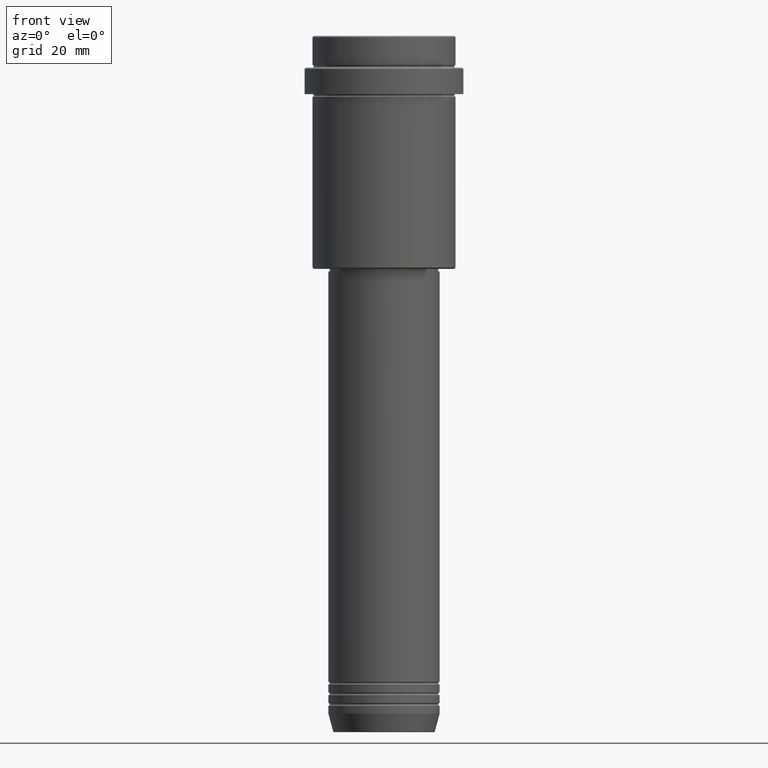
[diagram: clean part render]
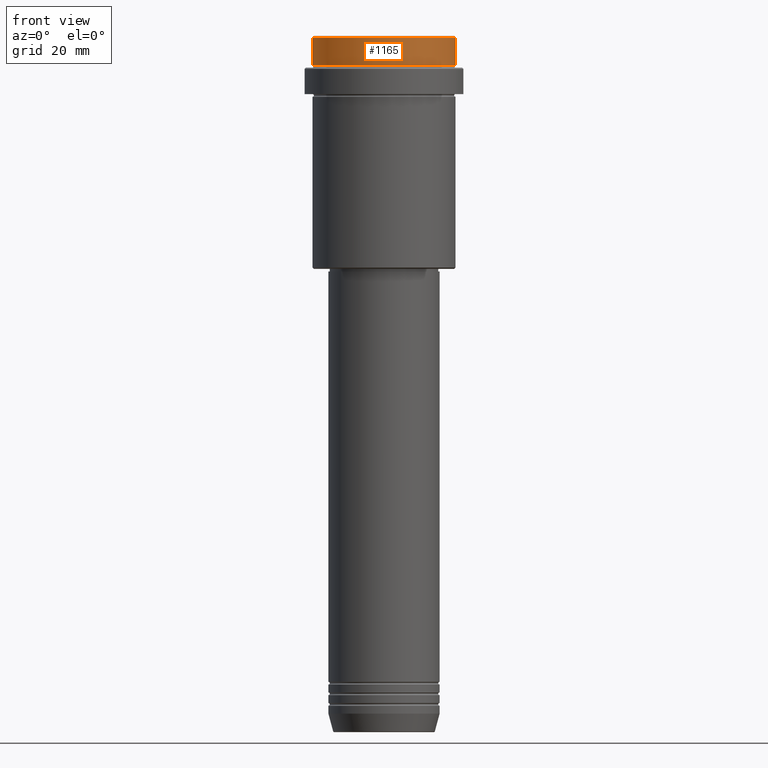
[diagram: same view with one face highlighted and labeled with its STEP entity id]
A machine part, front view. The second image highlights one B-rep face of the part: STEP entity #1165.
In plain terms, the highlighted cylindrical surface (partial cylindrical patch) has radius 27 mm, axis along (-0, -0, 1).
Its self-contained STEP definition (entity closure, byte-faithful):
#14 = ORIENTED_EDGE ( 'NONE', *, *, #159, .T. ) ;
#28 = EDGE_CURVE ( 'NONE', #704, #349, #457, .T. ) ;
#82 = CARTESIAN_POINT ( 'NONE',  ( -26.99999999999999645, 3.306546357697853339E-15, -0.5000000000000038858 ) ) ;
#121 = DIRECTION ( 'NONE',  ( -0.000000000000000000, -0.000000000000000000, 1.000000000000000000 ) ) ;
#145 = CIRCLE ( 'NONE', #466, 26.99999999999999645 ) ;
#159 = EDGE_CURVE ( 'NONE', #723, #704, #145, .T. ) ;
#251 = DIRECTION ( 'NONE',  ( 1.000000000000000000, 0.000000000000000000, 0.000000000000000000 ) ) ;
#316 = CARTESIAN_POINT ( 'NONE',  ( 0.000000000000000000, 0.000000000000000000, -11.00000000000000178 ) ) ;
#320 = EDGE_CURVE ( 'NONE', #349, #1352, #984, .T. ) ;
#333 = AXIS2_PLACEMENT_3D ( 'NONE', #1281, #477, #587 ) ;
#349 = VERTEX_POINT ( 'NONE', #1135 ) ;
#457 = LINE ( 'NONE', #662, #1031 ) ;
#466 = AXIS2_PLACEMENT_3D ( 'NONE', #316, #121, #1188 ) ;
#467 = AXIS2_PLACEMENT_3D ( 'NONE', #1015, #1227, #251 ) ;
#477 = DIRECTION ( 'NONE',  ( -0.000000000000000000, -0.000000000000000000, 1.000000000000000000 ) ) ;
#481 = EDGE_CURVE ( 'NONE', #723, #1352, #1146, .T. ) ;
#547 = ORIENTED_EDGE ( 'NONE', *, *, #28, .T. ) ;
#555 = DIRECTION ( 'NONE',  ( -0.000000000000000000, -0.000000000000000000, 1.000000000000000000 ) ) ;
#587 = DIRECTION ( 'NONE',  ( 1.000000000000000000, 0.000000000000000000, 0.000000000000000000 ) ) ;
#637 = ORIENTED_EDGE ( 'NONE', *, *, #320, .T. ) ;
#645 = CARTESIAN_POINT ( 'NONE',  ( 26.99999999999999645, 0.000000000000000000, -11.00000000000000178 ) ) ;
#661 = CYLINDRICAL_SURFACE ( 'NONE', #333, 26.99999999999999645 ) ;
#662 = CARTESIAN_POINT ( 'NONE',  ( 26.99999999999999645, 0.000000000000000000, 0.000000000000000000 ) ) ;
#704 = VERTEX_POINT ( 'NONE', #645 ) ;
#723 = VERTEX_POINT ( 'NONE', #948 ) ;
#898 = VECTOR ( 'NONE', #1041, 1000.000000000000000 ) ;
#948 = CARTESIAN_POINT ( 'NONE',  ( -26.99999999999999645, 3.306546357697853339E-15, -11.00000000000000178 ) ) ;
#969 = EDGE_LOOP ( 'NONE', ( #1255, #14, #547, #637 ) ) ;
#984 = CIRCLE ( 'NONE', #467, 26.99999999999999645 ) ;
#1015 = CARTESIAN_POINT ( 'NONE',  ( 0.000000000000000000, 0.000000000000000000, -0.5000000000000038858 ) ) ;
#1031 = VECTOR ( 'NONE', #555, 1000.000000000000000 ) ;
#1041 = DIRECTION ( 'NONE',  ( -0.000000000000000000, -0.000000000000000000, 1.000000000000000000 ) ) ;
#1135 = CARTESIAN_POINT ( 'NONE',  ( 26.99999999999999645, 0.000000000000000000, -0.5000000000000038858 ) ) ;
#1146 = LINE ( 'NONE', #1157, #898 ) ;
#1157 = CARTESIAN_POINT ( 'NONE',  ( -26.99999999999999645, 3.306546357697853339E-15, 0.000000000000000000 ) ) ;
#1165 = ADVANCED_FACE ( 'NONE', ( #1191 ), #661, .T. ) ;
#1188 = DIRECTION ( 'NONE',  ( 1.000000000000000000, 0.000000000000000000, 0.000000000000000000 ) ) ;
#1191 = FACE_OUTER_BOUND ( 'NONE', #969, .T. ) ;
#1227 = DIRECTION ( 'NONE',  ( 0.000000000000000000, 0.000000000000000000, -1.000000000000000000 ) ) ;
#1255 = ORIENTED_EDGE ( 'NONE', *, *, #481, .F. ) ;
#1281 = CARTESIAN_POINT ( 'NONE',  ( 0.000000000000000000, 0.000000000000000000, 0.000000000000000000 ) ) ;
#1352 = VERTEX_POINT ( 'NONE', #82 ) ;